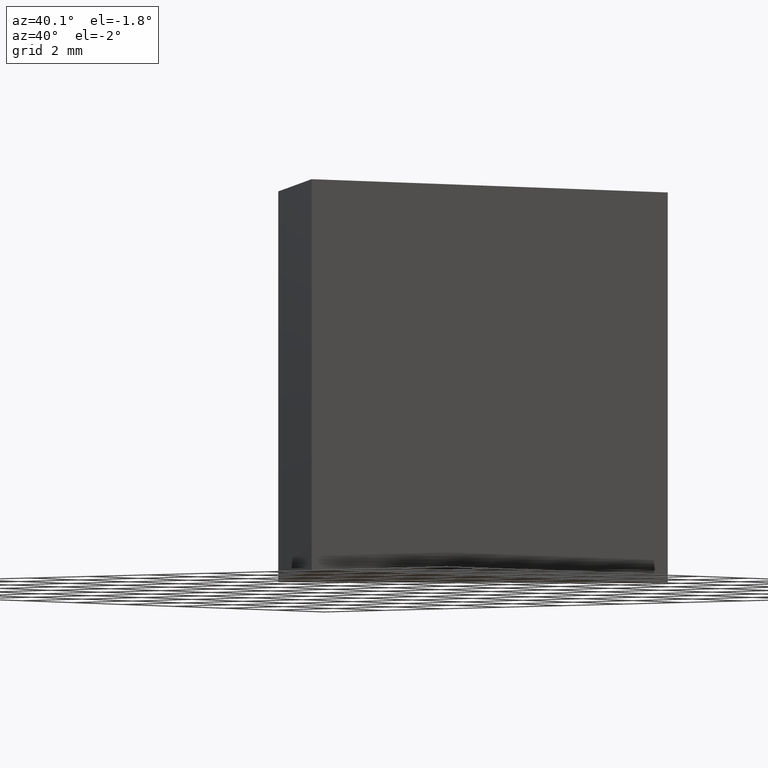
[diagram: clean part render]
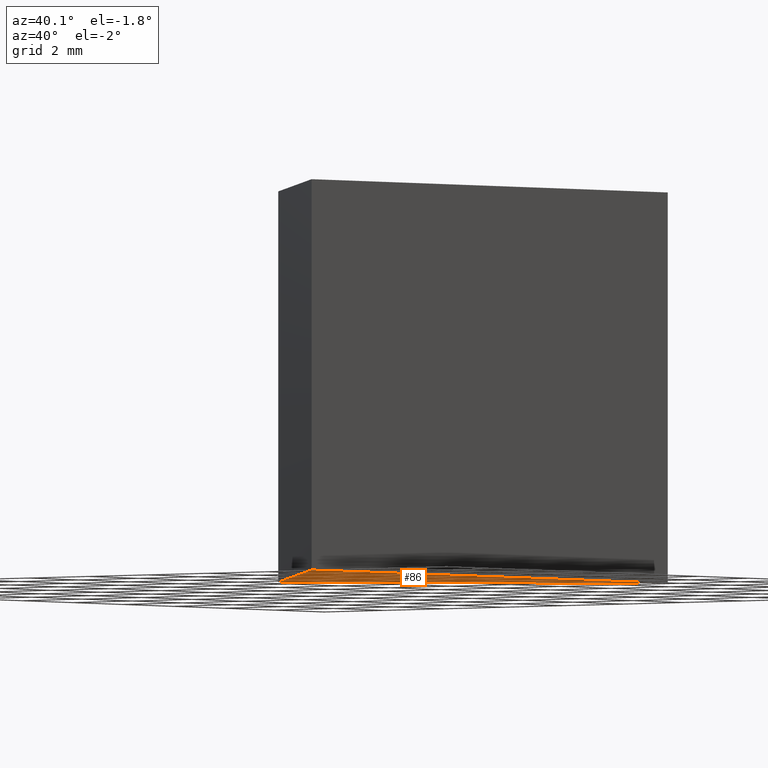
[diagram: same view with one face highlighted and labeled with its STEP entity id]
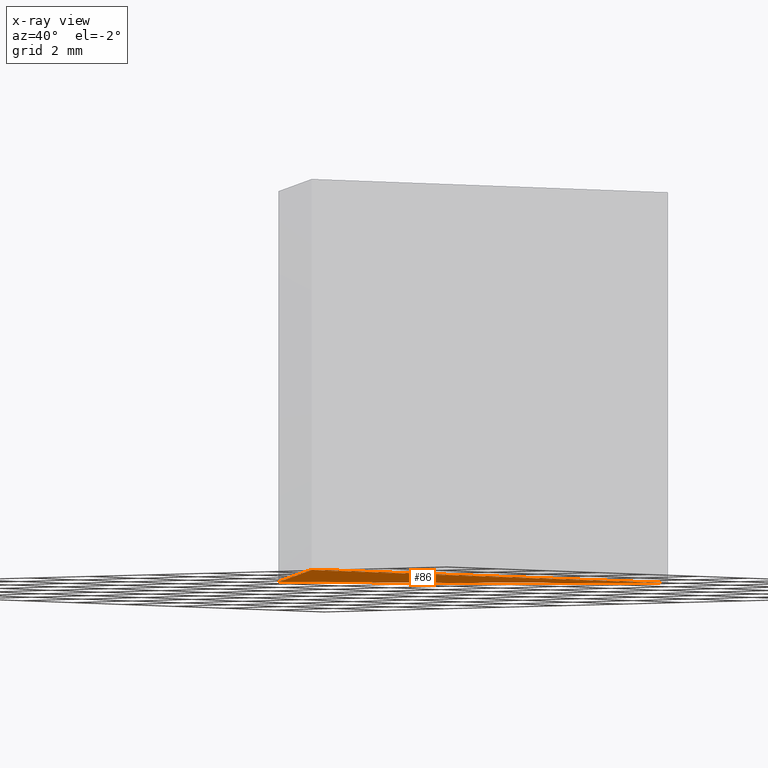
[diagram: x-ray of the same camera — body ghosted, the highlighted face saturated]
A machine part, auxiliary view. The second image highlights one B-rep face of the part: STEP entity #86.
The next image is the same camera in x-ray: the body ghosted, the highlighted face saturated — about 0% of this face is hidden behind the body in this view.
In plain terms, the highlighted planar face has unit normal (-0, 0, 1).
Its self-contained STEP definition (entity closure, byte-faithful):
#1 = CARTESIAN_POINT ( 'NONE',  ( 110.9533399051898500, 27.55138510566812500, 0.0000000000000000000 ) ) ;
#3 = CARTESIAN_POINT ( 'NONE',  ( 110.9533399051898500, 27.55138510566812500, 0.0000000000000000000 ) ) ;
#4 = AXIS2_PLACEMENT_3D ( 'NONE', #16, #104, #63 ) ;
#8 = VERTEX_POINT ( 'NONE', #3 ) ;
#11 = LINE ( 'NONE', #28, #165 ) ;
#16 = CARTESIAN_POINT ( 'NONE',  ( 0.0000000000000000000, 0.0000000000000000000, 0.0000000000000000000 ) ) ;
#25 = VECTOR ( 'NONE', #118, 999.9999999999998900 ) ;
#26 = CARTESIAN_POINT ( 'NONE',  ( 118.0244077170553400, 34.62245291753359300, 0.0000000000000000000 ) ) ;
#28 = CARTESIAN_POINT ( 'NONE',  ( 110.9533399051898500, 27.55138510566812500, 0.0000000000000000000 ) ) ;
#30 = DIRECTION ( 'NONE',  ( 0.7071067811865468000, -0.7071067811865483500, 0.0000000000000000000 ) ) ;
#31 = CARTESIAN_POINT ( 'NONE',  ( 118.0244077170553100, 20.48031729380264600, 0.0000000000000000000 ) ) ;
#33 = EDGE_CURVE ( 'NONE', #8, #160, #11, .T. ) ;
#35 = ORIENTED_EDGE ( 'NONE', *, *, #33, .F. ) ;
#36 = EDGE_CURVE ( 'NONE', #99, #8, #59, .T. ) ;
#43 = FACE_OUTER_BOUND ( 'NONE', #95, .T. ) ;
#59 = LINE ( 'NONE', #1, #25 ) ;
#63 = DIRECTION ( 'NONE',  ( 1.000000000000000000, 0.0000000000000000000, 0.0000000000000000000 ) ) ;
#79 = DIRECTION ( 'NONE',  ( 1.962615573354719300E-015, 1.000000000000000000, 0.0000000000000000000 ) ) ;
#86 = ADVANCED_FACE ( 'NONE', ( #43 ), #89, .F. ) ;
#87 = ORIENTED_EDGE ( 'NONE', *, *, #125, .F. ) ;
#89 = PLANE ( 'NONE',  #4 ) ;
#95 = EDGE_LOOP ( 'NONE', ( #35, #139, #87 ) ) ;
#99 = VERTEX_POINT ( 'NONE', #26 ) ;
#104 = DIRECTION ( 'NONE',  ( -0.0000000000000000000, 0.0000000000000000000, 1.000000000000000000 ) ) ;
#109 = VECTOR ( 'NONE', #79, 1000.000000000000000 ) ;
#110 = LINE ( 'NONE', #31, #109 ) ;
#118 = DIRECTION ( 'NONE',  ( -0.7071067811865486800, -0.7071067811865464600, -0.0000000000000000000 ) ) ;
#123 = CARTESIAN_POINT ( 'NONE',  ( 118.0244077170553100, 20.48031729380264600, 0.0000000000000000000 ) ) ;
#125 = EDGE_CURVE ( 'NONE', #160, #99, #110, .T. ) ;
#139 = ORIENTED_EDGE ( 'NONE', *, *, #36, .F. ) ;
#160 = VERTEX_POINT ( 'NONE', #123 ) ;
#165 = VECTOR ( 'NONE', #30, 999.9999999999998900 ) ;